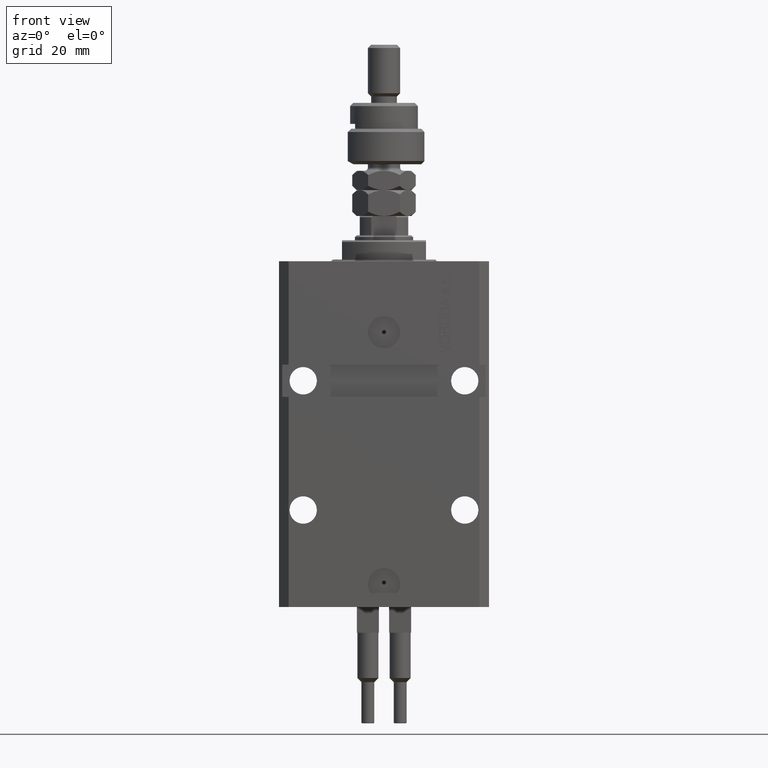
[diagram: clean part render]
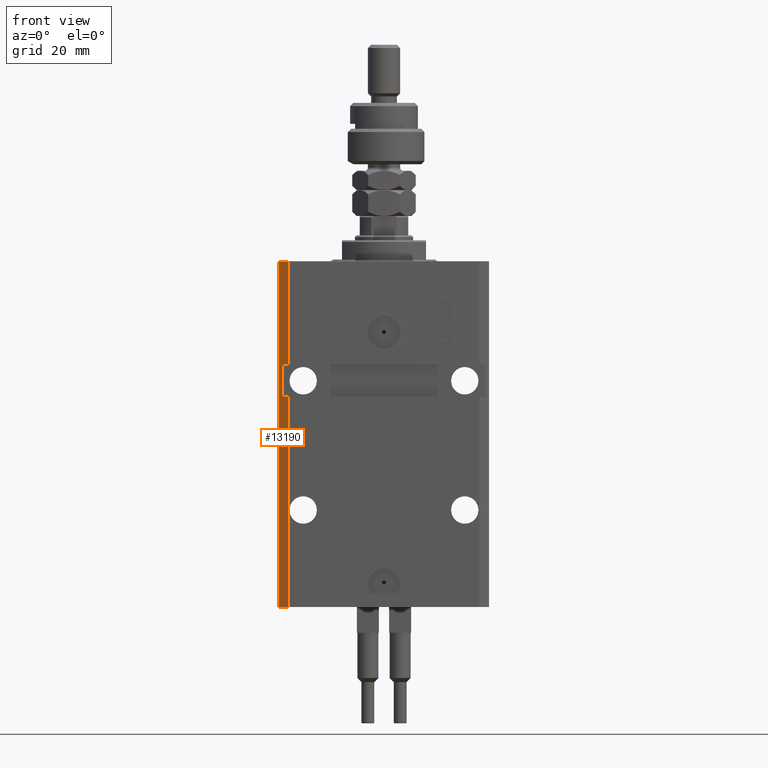
[diagram: same view with one face highlighted and labeled with its STEP entity id]
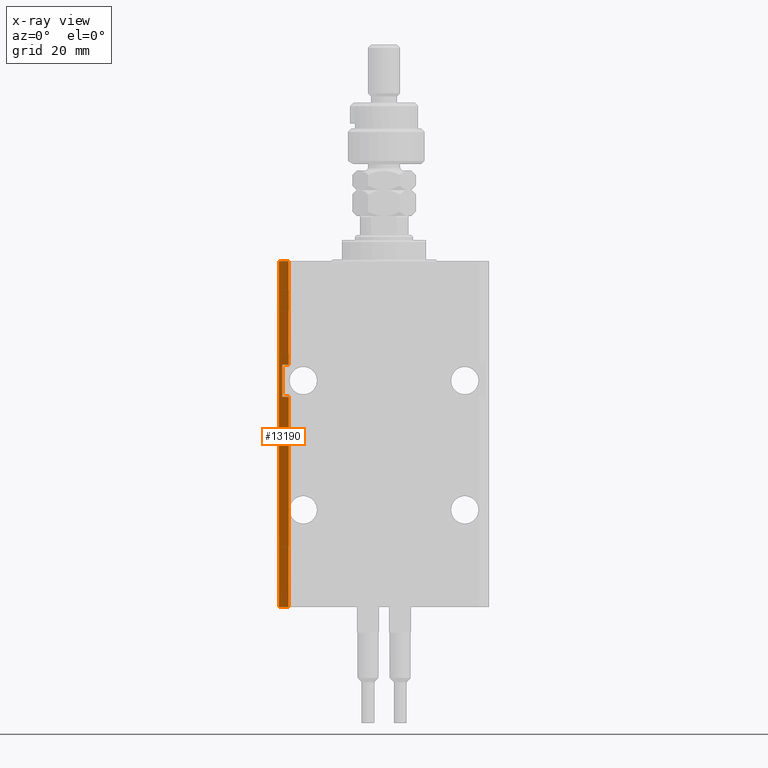
[diagram: x-ray of the same camera — body ghosted, the highlighted face saturated]
A machine part, front view. The second image highlights one B-rep face of the part: STEP entity #13190.
The next image is the same camera in x-ray: the body ghosted, the highlighted face saturated — about 0% of this face is hidden behind the body in this view.
In plain terms, the highlighted planar face has unit normal (-0.7071, -0.7071, 0).
Its self-contained STEP definition (entity closure, byte-faithful):
#191 = VERTEX_POINT ( 'NONE', #32069 ) ;
#1496 = CARTESIAN_POINT ( 'NONE',  ( -29.49999999999650413, -22.49999999999949907, -107.0000000000000000 ) ) ;
#2245 = LINE ( 'NONE', #3265, #13140 ) ;
#2431 = LINE ( 'NONE', #34176, #22910 ) ;
#3265 = CARTESIAN_POINT ( 'NONE',  ( -29.49999999999650413, -22.49999999999949907, -107.0000000000000000 ) ) ;
#4927 = ORIENTED_EDGE ( 'NONE', *, *, #34611, .T. ) ;
#6277 = ORIENTED_EDGE ( 'NONE', *, *, #19594, .F. ) ;
#6719 = EDGE_CURVE ( 'NONE', #24459, #39732, #26586, .T. ) ;
#7173 = CARTESIAN_POINT ( 'NONE',  ( -32.49999999999650413, -19.49999999999949907, -107.0000000000000000 ) ) ;
#7417 = CARTESIAN_POINT ( 'NONE',  ( -32.49999999999649702, -19.49999999999950262, -32.00000000000001421 ) ) ;
#8787 = ORIENTED_EDGE ( 'NONE', *, *, #6719, .F. ) ;
#11342 = CARTESIAN_POINT ( 'NONE',  ( -29.49999999999650413, -22.49999999999949907, 0.000000000000000000 ) ) ;
#11598 = EDGE_CURVE ( 'NONE', #36064, #39732, #21497, .T. ) ;
#12189 = ORIENTED_EDGE ( 'NONE', *, *, #45432, .F. ) ;
#13140 = VECTOR ( 'NONE', #50230, 1000.000000000000000 ) ;
#13190 = ADVANCED_FACE ( 'NONE', ( #42846 ), #20025, .T. ) ;
#13595 = DIRECTION ( 'NONE',  ( 0.000000000000000000, 0.000000000000000000, 1.000000000000000000 ) ) ;
#14444 = LINE ( 'NONE', #22584, #38242 ) ;
#16866 = LINE ( 'NONE', #20295, #42410 ) ;
#18411 = LINE ( 'NONE', #49870, #40151 ) ;
#19145 = ORIENTED_EDGE ( 'NONE', *, *, #30097, .F. ) ;
#19594 = EDGE_CURVE ( 'NONE', #26070, #37139, #14444, .T. ) ;
#20025 = PLANE ( 'NONE',  #34734 ) ;
#20295 = CARTESIAN_POINT ( 'NONE',  ( -32.49999999999650413, -19.49999999999949907, -107.0000000000000000 ) ) ;
#20872 = ORIENTED_EDGE ( 'NONE', *, *, #40878, .T. ) ;
#21081 = CARTESIAN_POINT ( 'NONE',  ( -29.49999999999650058, -22.49999999999949907, -32.00000000000000000 ) ) ;
#21497 = LINE ( 'NONE', #24902, #48880 ) ;
#22240 = EDGE_LOOP ( 'NONE', ( #19145, #31676, #8787, #4927, #12189, #6277, #35112, #20872 ) ) ;
#22584 = CARTESIAN_POINT ( 'NONE',  ( -32.49999999999650413, -19.49999999999949907, -107.0000000000000000 ) ) ;
#22910 = VECTOR ( 'NONE', #38124, 1000.000000000000114 ) ;
#23077 = CARTESIAN_POINT ( 'NONE',  ( -31.49999999999650413, -20.49999999999949907, -41.99999999999999289 ) ) ;
#24459 = VERTEX_POINT ( 'NONE', #21081 ) ;
#24902 = CARTESIAN_POINT ( 'NONE',  ( -31.49999999999650413, -20.49999999999950262, -107.0000000000000000 ) ) ;
#25645 = LINE ( 'NONE', #1496, #37358 ) ;
#26070 = VERTEX_POINT ( 'NONE', #31320 ) ;
#26586 = LINE ( 'NONE', #7417, #29439 ) ;
#29439 = VECTOR ( 'NONE', #30498, 1000.000000000000114 ) ;
#30097 = EDGE_CURVE ( 'NONE', #36064, #47731, #2431, .T. ) ;
#30498 = DIRECTION ( 'NONE',  ( -0.7071067811865474617, 0.7071067811865474617, 7.548521435980497974E-17 ) ) ;
#31320 = CARTESIAN_POINT ( 'NONE',  ( -32.49999999999650413, -19.49999999999949907, -107.0000000000000000 ) ) ;
#31676 = ORIENTED_EDGE ( 'NONE', *, *, #11598, .T. ) ;
#32069 = CARTESIAN_POINT ( 'NONE',  ( -29.49999999999650413, -22.49999999999949907, -107.0000000000000000 ) ) ;
#34176 = CARTESIAN_POINT ( 'NONE',  ( -32.49999999999651124, -19.49999999999949551, -41.99999999999999289 ) ) ;
#34380 = DIRECTION ( 'NONE',  ( 0.7071067811865474617, -0.7071067811865474617, 0.000000000000000000 ) ) ;
#34611 = EDGE_CURVE ( 'NONE', #24459, #45156, #25645, .T. ) ;
#34734 = AXIS2_PLACEMENT_3D ( 'NONE', #7173, #38925, #39698 ) ;
#35112 = ORIENTED_EDGE ( 'NONE', *, *, #35173, .T. ) ;
#35173 = EDGE_CURVE ( 'NONE', #26070, #191, #16866, .T. ) ;
#36064 = VERTEX_POINT ( 'NONE', #23077 ) ;
#36278 = DIRECTION ( 'NONE',  ( 0.7071067811865474617, -0.7071067811865474617, 0.000000000000000000 ) ) ;
#37139 = VERTEX_POINT ( 'NONE', #41332 ) ;
#37358 = VECTOR ( 'NONE', #44779, 1000.000000000000000 ) ;
#38124 = DIRECTION ( 'NONE',  ( 0.7071067811865474617, -0.7071067811865474617, 7.548521435980497974E-17 ) ) ;
#38242 = VECTOR ( 'NONE', #38837, 1000.000000000000000 ) ;
#38837 = DIRECTION ( 'NONE',  ( 0.000000000000000000, 0.000000000000000000, 1.000000000000000000 ) ) ;
#38925 = DIRECTION ( 'NONE',  ( -0.7071067811865475727, -0.7071067811865475727, 0.000000000000000000 ) ) ;
#39698 = DIRECTION ( 'NONE',  ( 0.7071067811865474617, -0.7071067811865474617, 0.000000000000000000 ) ) ;
#39732 = VERTEX_POINT ( 'NONE', #40380 ) ;
#40151 = VECTOR ( 'NONE', #34380, 1000.000000000000114 ) ;
#40380 = CARTESIAN_POINT ( 'NONE',  ( -31.49999999999650413, -20.49999999999950262, -32.00000000000000000 ) ) ;
#40878 = EDGE_CURVE ( 'NONE', #191, #47731, #2245, .T. ) ;
#41332 = CARTESIAN_POINT ( 'NONE',  ( -32.49999999999650413, -19.49999999999949907, 0.000000000000000000 ) ) ;
#42410 = VECTOR ( 'NONE', #36278, 1000.000000000000114 ) ;
#42846 = FACE_OUTER_BOUND ( 'NONE', #22240, .T. ) ;
#44779 = DIRECTION ( 'NONE',  ( 0.000000000000000000, 0.000000000000000000, 1.000000000000000000 ) ) ;
#45156 = VERTEX_POINT ( 'NONE', #11342 ) ;
#45432 = EDGE_CURVE ( 'NONE', #37139, #45156, #18411, .T. ) ;
#47731 = VERTEX_POINT ( 'NONE', #49316 ) ;
#48880 = VECTOR ( 'NONE', #13595, 1000.000000000000000 ) ;
#49316 = CARTESIAN_POINT ( 'NONE',  ( -29.49999999999650413, -22.49999999999949907, -41.99999999999999289 ) ) ;
#49870 = CARTESIAN_POINT ( 'NONE',  ( -32.49999999999650413, -19.49999999999949907, 0.000000000000000000 ) ) ;
#50230 = DIRECTION ( 'NONE',  ( 0.000000000000000000, 0.000000000000000000, 1.000000000000000000 ) ) ;